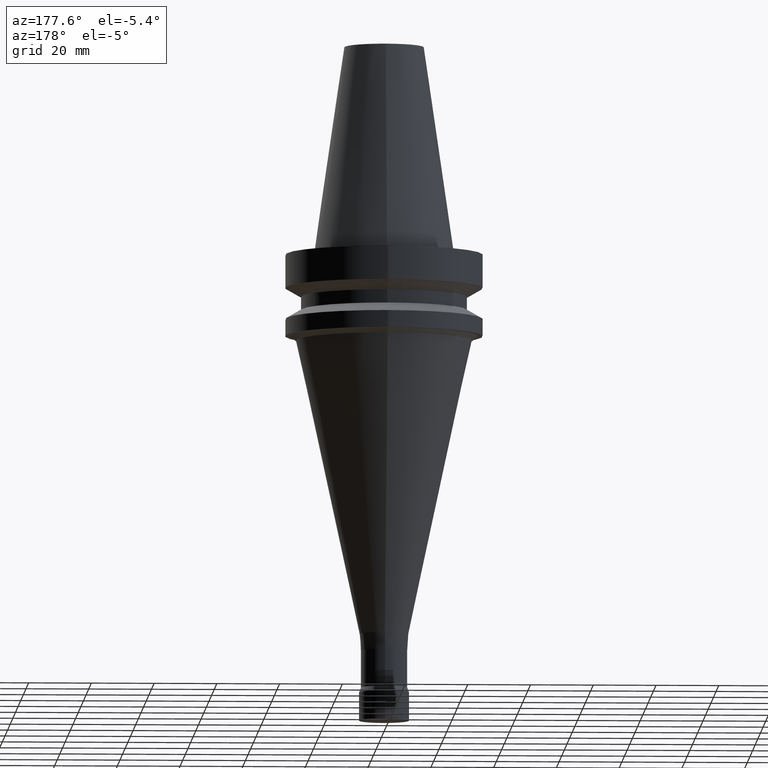
[diagram: clean part render]
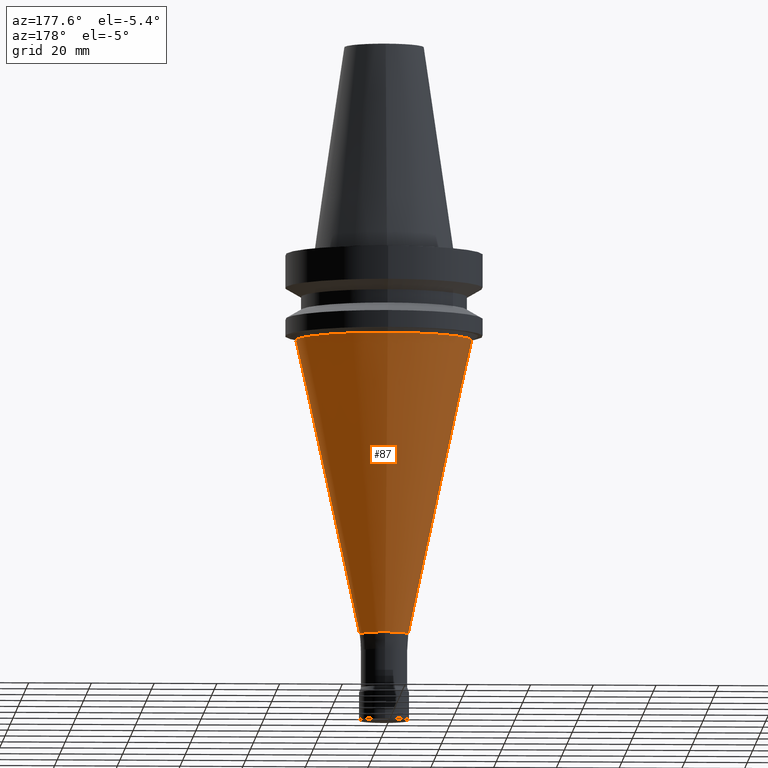
[diagram: same view with one face highlighted and labeled with its STEP entity id]
A machine part, auxiliary view. The second image highlights one B-rep face of the part: STEP entity #87.
In plain terms, the highlighted conical surface has half-angle 12.219 deg.
Its self-contained STEP definition (entity closure, byte-faithful):
#87=ADVANCED_FACE('',(#127,#128),#129,.T.);
#127=FACE_BOUND('',#176,.T.);
#128=FACE_BOUND('',#177,.T.);
#129=CONICAL_SURFACE('',#178,17.9196655881374,0.213255251241059);
#176=EDGE_LOOP('',(#249));
#177=EDGE_LOOP('',(#250));
#178=AXIS2_PLACEMENT_3D('',#251,#252,#253);
#249=ORIENTED_EDGE('',*,*,#286,.F.);
#250=ORIENTED_EDGE('',*,*,#285,.T.);
#251=CARTESIAN_POINT('',(4.614860131048E-015,9.229720262096E-015,-75.3663853816634));
#252=DIRECTION('',(-6.12323399573676E-017,-1.22464679914735E-016,1.0));
#253=DIRECTION('',(-1.23259516440783E-032,1.0,1.22464679914735E-016));
#285=EDGE_CURVE('',#312,#312,#313,.T.);
#286=EDGE_CURVE('',#314,#314,#315,.T.);
#312=VERTEX_POINT('',#344);
#313=CIRCLE('',#345,28.0854636082644);
#314=VERTEX_POINT('',#346);
#315=CIRCLE('',#347,7.75386756801049);
#344=CARTESIAN_POINT('',(1.7403208698222E-015,28.0854636082644,-28.4215966764275));
#345=AXIS2_PLACEMENT_3D('',#387,#388,#389);
#346=CARTESIAN_POINT('',(7.4893993922738E-015,7.7538675680105,-122.311174086899));
#347=AXIS2_PLACEMENT_3D('',#390,#391,#392);
#387=CARTESIAN_POINT('',(1.7403208698222E-015,3.48064173964439E-015,-28.4215966764275));
#388=DIRECTION('',(6.12323399573677E-017,1.22464679914735E-016,-1.0));
#389=DIRECTION('',(-1.23259516440783E-032,1.0,1.22464679914735E-016));
#390=CARTESIAN_POINT('',(7.4893993922738E-015,1.49787987845476E-014,-122.311174086899));
#391=DIRECTION('',(6.12323399573677E-017,1.22464679914735E-016,-1.0));
#392=DIRECTION('',(-1.23259516440783E-032,1.0,1.22464679914735E-016));